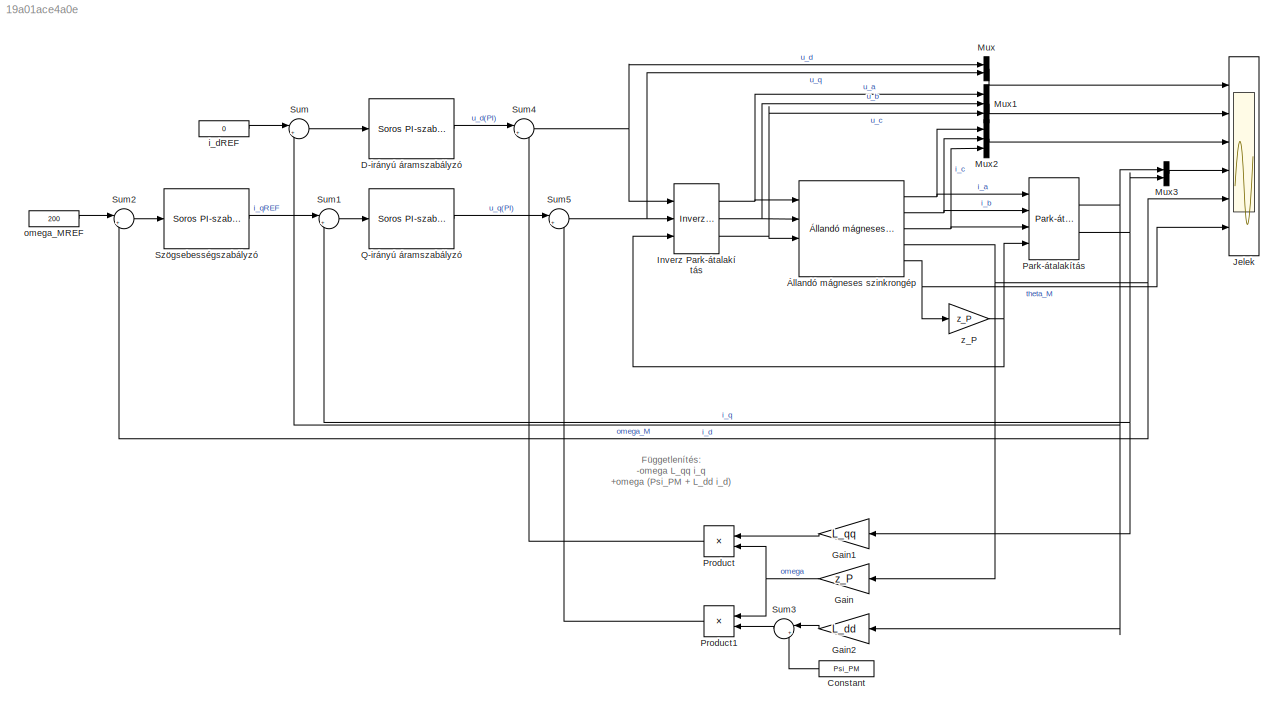
MODEL slx_19a01ace4a0e
KIND model
CONFIG InitFcn = % Modellparaméterek\nR = 440e-3;\nL_dd = 155e-6;\nL_qq = 188e-6;\n\nPsi_PM = 24.5e-3;\nz_P = 2;\n\nJ = 200e-7;\nB = 5e-5;\n\n% Korlátok\ni_L = 10;\nu_L = 48;\n\n\n% Rendszerparaméterek\nK_d = 1/R;\ntau_d = L_dd/R;\nK_q = 1/R;\ntau_q = L_qq/R;\n\nK_M = 3/2*z_P*Psi_PM/B;\ntau_M = J/B;\n\n\n% Szabályzóhangolás\n% Másodrendű zárt körként hangolva\n\n% D-irányú áramkör\n% i_dREF (= 0 A) -> u_d\nxi_CL_d = 1;\ntau_CL_d = tau_d/10;\n\nK_P...<+501ch>
BLOCK [Constant] Constant
  Value = Psi_PM
BLOCK [Reference] D-irányú áramszabályzó  REF=RI_MK/Soros PI-szabályzó korlátozással
  K_PI = K_PI_d_MRZK
  L_L = -u_L
  L_U = u_L
  Ports = [1, 1]
  SourceBlock = RI_MK/Soros PI-szabályzó korlátozással
  SourceType = Soros PI-szabályzó
  T_I = T_I_d_MRZK
  T_T = T_I_d_MRZK
BLOCK [Gain] Gain
  Gain = z_P
  OutDataTypeStr = Inherit: Inherit via internal rule
  ParamDataTypeStr = Inherit: Inherit via internal rule
  SaturateOnIntegerOverflow = off
BLOCK [Gain] Gain1
  Gain = L_qq
  OutDataTypeStr = Inherit: Inherit via internal rule
  ParamDataTypeStr = Inherit: Inherit via internal rule
  SaturateOnIntegerOverflow = off
BLOCK [Gain] Gain2
  Gain = L_dd
  OutDataTypeStr = Inherit: Inherit via internal rule
  ParamDataTypeStr = Inherit: Inherit via internal rule
  SaturateOnIntegerOverflow = off
BLOCK [Reference] Inverz Park-átalakítás  REF=RI_MK/Inverz Park-átalakítás
  Ports = [3, 3]
  SourceBlock = RI_MK/Inverz Park-átalakítás
  SourceType = SubSystem
BLOCK [Scope] Jelek
  DataFormat = StructureWithTime
  Floating = off
  LegendLocations = 0.82933     0.92245      0.1216     0.03842\n0.82933     0.74671      0.1216    0.055141\n0.83413     0.58876      0.1168    0.055141\n0.83413     0.44753      0.1168     0.03842\n0.78133      0.3063      0.1696      0.0217\n0.79573     0.14835      0.1552      0.0217
  LimitDataPoints = off
  NumInputPorts = 6
  Ports = [6]
  SampleTime = 0
  ShowLegends = on
  YMax = 5~5~5~5~5~5
  YMin = -5~-5~-5~-5~-5~-5
  ZoomMode = xonly
BLOCK [Mux] Mux
  DisplayOption = bar
  Inputs = 2
  Ports = [2, 1]
BLOCK [Mux] Mux1
  DisplayOption = bar
  Inputs = 3
  Ports = [3, 1]
BLOCK [Mux] Mux2
  DisplayOption = bar
  Inputs = 3
  Ports = [3, 1]
BLOCK [Mux] Mux3
  DisplayOption = bar
  Inputs = 2
  Ports = [2, 1]
BLOCK [Reference] Park-átalakítás  REF=RI_MK/Park-átalakítás
  Ports = [4, 2]
  SourceBlock = RI_MK/Park-átalakítás
  SourceType = SubSystem
BLOCK [Product] Product
  InputSameDT = off
  OutDataTypeStr = Inherit: Inherit via internal rule
  Ports = [2, 1]
  RndMeth = Floor
  SaturateOnIntegerOverflow = off
BLOCK [Product] Product1
  InputSameDT = off
  OutDataTypeStr = Inherit: Inherit via internal rule
  Ports = [2, 1]
  RndMeth = Floor
  SaturateOnIntegerOverflow = off
BLOCK [Reference] Q-irányú áramszabályzó  REF=RI_MK/Soros PI-szabályzó korlátozással
  K_PI = K_PI_q_MRZK
  L_L = -u_L
  L_U = u_L
  Ports = [1, 1]
  SourceBlock = RI_MK/Soros PI-szabályzó korlátozással
  SourceType = Soros PI-szabályzó
  T_I = T_I_q_MRZK
  T_T = T_I_q_MRZK
BLOCK [Sum] Sum
  IconShape = round
  InputSameDT = off
  Inputs = |+-
  OutDataTypeStr = Inherit: Inherit via internal rule
  Ports = [2, 1]
  SaturateOnIntegerOverflow = off
BLOCK [Sum] Sum1
  IconShape = round
  InputSameDT = off
  Inputs = |+-
  OutDataTypeStr = Inherit: Inherit via internal rule
  Ports = [2, 1]
  SaturateOnIntegerOverflow = off
BLOCK [Sum] Sum2
  IconShape = round
  InputSameDT = off
  Inputs = |+-
  OutDataTypeStr = Inherit: Inherit via internal rule
  Ports = [2, 1]
  SaturateOnIntegerOverflow = off
BLOCK [Sum] Sum3
  IconShape = round
  InputSameDT = off
  Inputs = |++
  OutDataTypeStr = Inherit: Inherit via internal rule
  Ports = [2, 1]
  SaturateOnIntegerOverflow = off
BLOCK [Sum] Sum4
  IconShape = round
  InputSameDT = off
  Inputs = |+-
  OutDataTypeStr = Inherit: Inherit via internal rule
  Ports = [2, 1]
  SaturateOnIntegerOverflow = off
BLOCK [Sum] Sum5
  IconShape = round
  InputSameDT = off
  Inputs = |++
  OutDataTypeStr = Inherit: Inherit via internal rule
  Ports = [2, 1]
  SaturateOnIntegerOverflow = off
BLOCK [Reference] Szögsebességszabályzó  REF=RI_MK/Soros PI-szabályzó korlátozással
  K_PI = K_PI_M_MRZK
  L_L = -i_L
  L_U = i_L
  Ports = [1, 1]
  SourceBlock = RI_MK/Soros PI-szabályzó korlátozással
  SourceType = Soros PI-szabályzó
  T_I = T_I_M_MRZK
  T_T = T_I_M_MRZK
BLOCK [Constant] i_dREF
  Value = 0
BLOCK [Constant] omega_MREF
  Value = 200
BLOCK [Gain] z_P
  Gain = z_P
  OutDataTypeStr = Inherit: Inherit via internal rule
  ParamDataTypeStr = Inherit: Inherit via internal rule
  SaturateOnIntegerOverflow = off
BLOCK [Reference] Állandó mágneses szinkrongép  REF=RI_MK/Állandó mágneses szinkrongép
  B = B
  J = J
  L_dd = L_dd
  L_qq = L_qq
  Ports = [4, 5]
  Psi_PM = Psi_PM
  R = R
  SourceBlock = RI_MK/Állandó mágneses szinkrongép
  SourceType = Állandó mágneses szinkrongép
  i_d0 = 0
  i_q0 = 0
  omega_M0 = 0
  theta_M0 = 0
  z_P = z_P
ANNOTATION (root): Függetlenítés: -omega L_qq i_q +omega (Psi_PM + L_dd i_d)
LINE Constant:1 -> Sum3:2
LINE D-irányú áramszabályzó:1 -> Sum4:1
LINE Gain1:1 -> Product:1
LINE Gain2:1 -> Sum3:1
NET Gain:1 -> Product1:1, Product:2
NET Inverz Park-átalakítás:1 -> Mux1:1, Állandó mágneses szinkrongép:1
NET Inverz Park-átalakítás:2 -> Mux1:2, Állandó mágneses szinkrongép:2
NET Inverz Park-átalakítás:3 -> Mux1:3, Állandó mágneses szinkrongép:3
LINE Mux1:1 -> Jelek:2
LINE Mux2:1 -> Jelek:3
LINE Mux3:1 -> Jelek:4
LINE Mux:1 -> Jelek:1
NET Park-átalakítás:1 -> Gain2:1, Mux3:1, Sum:2
NET Park-átalakítás:2 -> Gain1:1, Mux3:2, Sum1:2
LINE Product1:1 -> Sum5:2
LINE Product:1 -> Sum4:2
LINE Q-irányú áramszabályzó:1 -> Sum5:1
LINE Sum1:1 -> Q-irányú áramszabályzó:1
LINE Sum2:1 -> Szögsebességszabályzó:1
LINE Sum3:1 -> Product1:2
NET Sum4:1 -> Inverz Park-átalakítás:1, Mux:1
NET Sum5:1 -> Inverz Park-átalakítás:2, Mux:2
LINE Sum:1 -> D-irányú áramszabályzó:1
LINE Szögsebességszabályzó:1 -> Sum1:1
LINE i_dREF:1 -> Sum:1
LINE omega_MREF:1 -> Sum2:1
NET z_P:1 -> Inverz Park-átalakítás:3, Park-átalakítás:4
NET Állandó mágneses szinkrongép:1 -> Mux2:1, Park-átalakítás:1
NET Állandó mágneses szinkrongép:2 -> Mux2:2, Park-átalakítás:2
NET Állandó mágneses szinkrongép:3 -> Mux2:3, Park-átalakítás:3
NET Állandó mágneses szinkrongép:4 -> Gain:1, Jelek:5, Sum2:2
NET Állandó mágneses szinkrongép:5 -> Jelek:6, z_P:1
note: NET lines group one-source signal fan-out (src -> all destinations, sorted); 1:1 wires keep LINE
